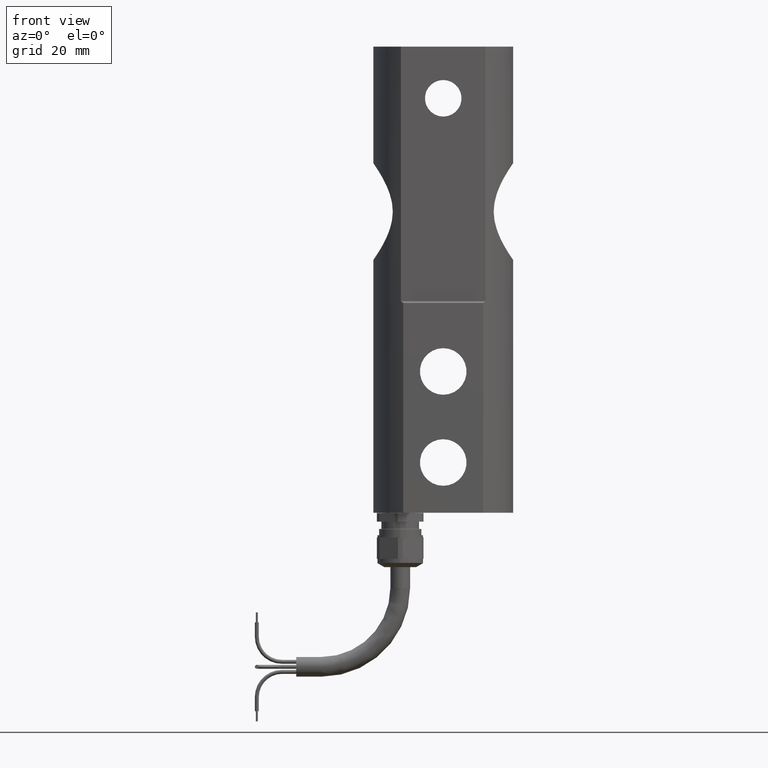
[diagram: clean part render]
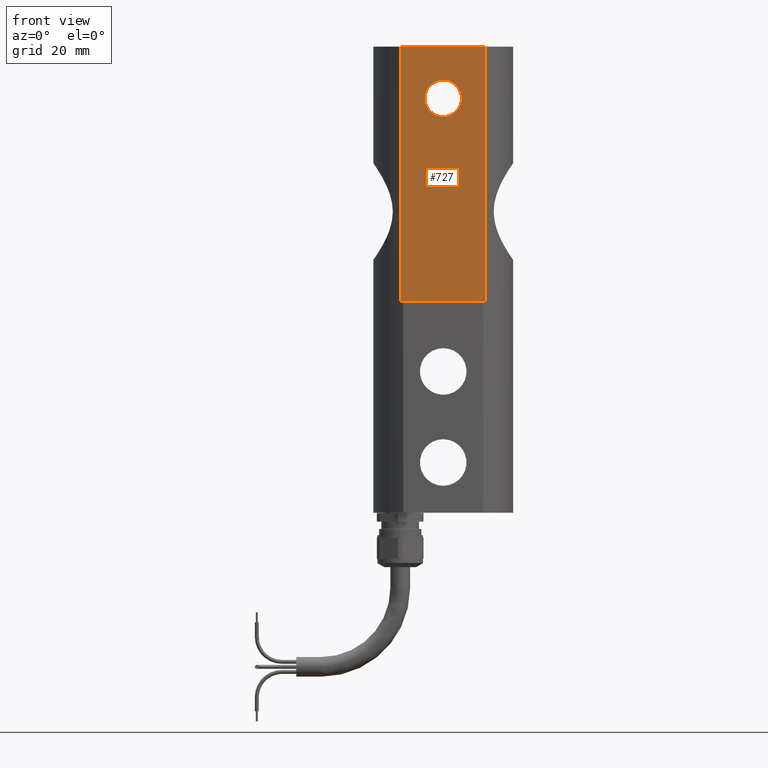
[diagram: same view with one face highlighted and labeled with its STEP entity id]
A machine part, front view. The second image highlights one B-rep face of the part: STEP entity #727.
In plain terms, the highlighted planar face has unit normal (0, -1, 0).
Its self-contained STEP definition (entity closure, byte-faithful):
#44 = EDGE_CURVE ( 'NONE', #1456, #6550, #3356, .T. ) ;
#408 = ORIENTED_EDGE ( 'NONE', *, *, #44, .T. ) ;
#576 = CARTESIAN_POINT ( 'NONE',  ( -5.985476221196609180E-15, -0.6102362204724408601, 1.791338582677166169 ) ) ;
#727 = ADVANCED_FACE ( 'NONE', ( #5064, #1923 ), #6205, .T. ) ;
#874 = CARTESIAN_POINT ( 'NONE',  ( -0.4658330537873712207, -0.6102362204724410821, 2.559055118110236560 ) ) ;
#911 = EDGE_LOOP ( 'NONE', ( #5879, #1593, #7863, #7181 ) ) ;
#1119 = VERTEX_POINT ( 'NONE', #3819 ) ;
#1169 = CARTESIAN_POINT ( 'NONE',  ( 0.4658330537873714983, -0.6102362204724409711, 2.559055118110236560 ) ) ;
#1239 = ORIENTED_EDGE ( 'NONE', *, *, #6217, .T. ) ;
#1344 = DIRECTION ( 'NONE',  ( 0.000000000000000000, 1.000000000000000000, 0.000000000000000000 ) ) ;
#1396 = DIRECTION ( 'NONE',  ( 0.000000000000000000, -0.000000000000000000, -1.000000000000000000 ) ) ;
#1456 = VERTEX_POINT ( 'NONE', #576 ) ;
#1536 = EDGE_CURVE ( 'NONE', #6221, #2614, #2218, .T. ) ;
#1593 = ORIENTED_EDGE ( 'NONE', *, *, #2580, .F. ) ;
#1601 = DIRECTION ( 'NONE',  ( 0.000000000000000000, 0.000000000000000000, 1.000000000000000000 ) ) ;
#1812 = EDGE_CURVE ( 'NONE', #6221, #1119, #7010, .T. ) ;
#1889 = EDGE_CURVE ( 'NONE', #2614, #4194, #6607, .T. ) ;
#1923 = FACE_BOUND ( 'NONE', #1932, .T. ) ;
#1932 = EDGE_LOOP ( 'NONE', ( #1239, #408 ) ) ;
#2095 = DIRECTION ( 'NONE',  ( 0.000000000000000000, 0.000000000000000000, 1.000000000000000000 ) ) ;
#2096 = DIRECTION ( 'NONE',  ( 0.000000000000000000, 0.000000000000000000, 1.000000000000000000 ) ) ;
#2167 = CIRCLE ( 'NONE', #4986, 0.2007874015748029040 ) ;
#2218 = LINE ( 'NONE', #4824, #4987 ) ;
#2580 = EDGE_CURVE ( 'NONE', #1119, #4194, #6065, .T. ) ;
#2614 = VERTEX_POINT ( 'NONE', #3647 ) ;
#2769 = CARTESIAN_POINT ( 'NONE',  ( -0.4658330537873712762, -0.6102362204724409711, -0.2362204724409445455 ) ) ;
#3356 = CIRCLE ( 'NONE', #6825, 0.2007874015748029040 ) ;
#3647 = CARTESIAN_POINT ( 'NONE',  ( 0.4658330537873714983, -0.6102362204724409711, -0.2362204724409445455 ) ) ;
#3819 = CARTESIAN_POINT ( 'NONE',  ( -0.4658330537873713317, -0.6102362204724409711, 2.559055118110236560 ) ) ;
#3824 = VECTOR ( 'NONE', #4854, 39.37007874015748143 ) ;
#4194 = VERTEX_POINT ( 'NONE', #1169 ) ;
#4212 = VECTOR ( 'NONE', #6091, 39.37007874015748143 ) ;
#4379 = CARTESIAN_POINT ( 'NONE',  ( -6.010065586061378686E-15, -0.6102362204724408601, 1.992125984251969184 ) ) ;
#4595 = VECTOR ( 'NONE', #1601, 39.37007874015748143 ) ;
#4824 = CARTESIAN_POINT ( 'NONE',  ( -0.7677165354330708347, -0.6102362204724409711, -0.2362204724409445455 ) ) ;
#4854 = DIRECTION ( 'NONE',  ( 1.000000000000000000, 0.000000000000000000, -0.000000000000000000 ) ) ;
#4986 = AXIS2_PLACEMENT_3D ( 'NONE', #7768, #5130, #2096 ) ;
#4987 = VECTOR ( 'NONE', #7287, 39.37007874015748143 ) ;
#5064 = FACE_OUTER_BOUND ( 'NONE', #911, .T. ) ;
#5130 = DIRECTION ( 'NONE',  ( 0.000000000000000000, 1.000000000000000000, 0.000000000000000000 ) ) ;
#5376 = CARTESIAN_POINT ( 'NONE',  ( 0.000000000000000000, -0.6102362204724409711, 2.559055118110236560 ) ) ;
#5570 = CARTESIAN_POINT ( 'NONE',  ( -0.7677165354330708347, -0.6102362204724409711, 2.559055118110236560 ) ) ;
#5603 = DIRECTION ( 'NONE',  ( 0.000000000000000000, -1.000000000000000000, 0.000000000000000000 ) ) ;
#5879 = ORIENTED_EDGE ( 'NONE', *, *, #1889, .T. ) ;
#6065 = LINE ( 'NONE', #5376, #3824 ) ;
#6091 = DIRECTION ( 'NONE',  ( -0.000000000000000000, 0.000000000000000000, 1.000000000000000000 ) ) ;
#6205 = PLANE ( 'NONE',  #6451 ) ;
#6217 = EDGE_CURVE ( 'NONE', #6550, #1456, #2167, .T. ) ;
#6221 = VERTEX_POINT ( 'NONE', #2769 ) ;
#6451 = AXIS2_PLACEMENT_3D ( 'NONE', #5570, #5603, #1396 ) ;
#6550 = VERTEX_POINT ( 'NONE', #6758 ) ;
#6607 = LINE ( 'NONE', #7352, #4212 ) ;
#6758 = CARTESIAN_POINT ( 'NONE',  ( -6.010065586061378686E-15, -0.6102362204724408601, 2.192913385826771755 ) ) ;
#6825 = AXIS2_PLACEMENT_3D ( 'NONE', #4379, #1344, #2095 ) ;
#7010 = LINE ( 'NONE', #874, #4595 ) ;
#7181 = ORIENTED_EDGE ( 'NONE', *, *, #1536, .T. ) ;
#7287 = DIRECTION ( 'NONE',  ( 1.000000000000000000, 0.000000000000000000, 0.000000000000000000 ) ) ;
#7352 = CARTESIAN_POINT ( 'NONE',  ( 0.4658330537873716093, -0.6102362204724409711, 2.559055118110236560 ) ) ;
#7768 = CARTESIAN_POINT ( 'NONE',  ( -6.010065586061378686E-15, -0.6102362204724408601, 1.992125984251969184 ) ) ;
#7863 = ORIENTED_EDGE ( 'NONE', *, *, #1812, .F. ) ;